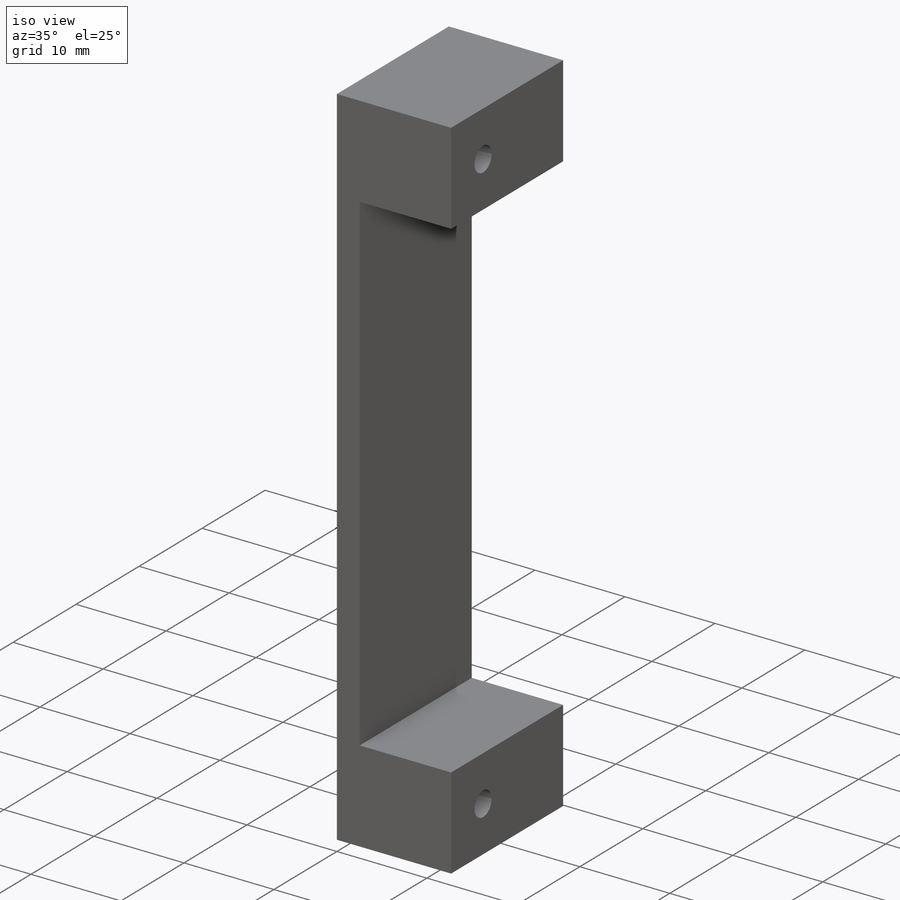
[diagram: iso view]
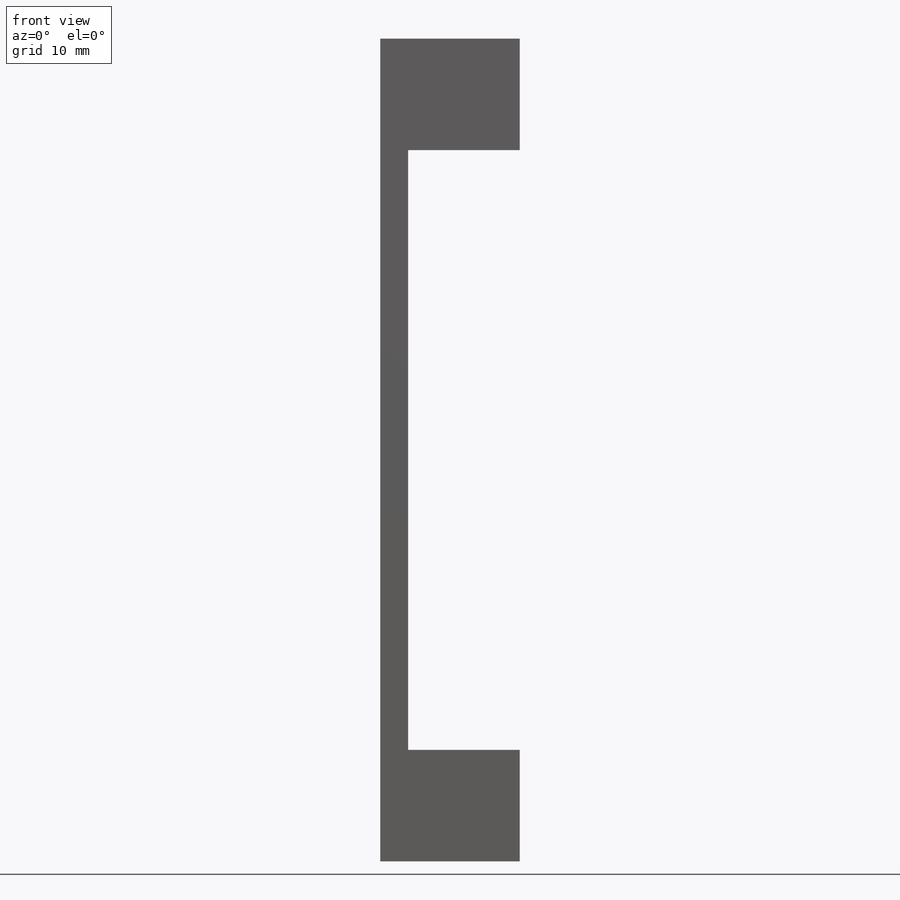
[diagram: front view]
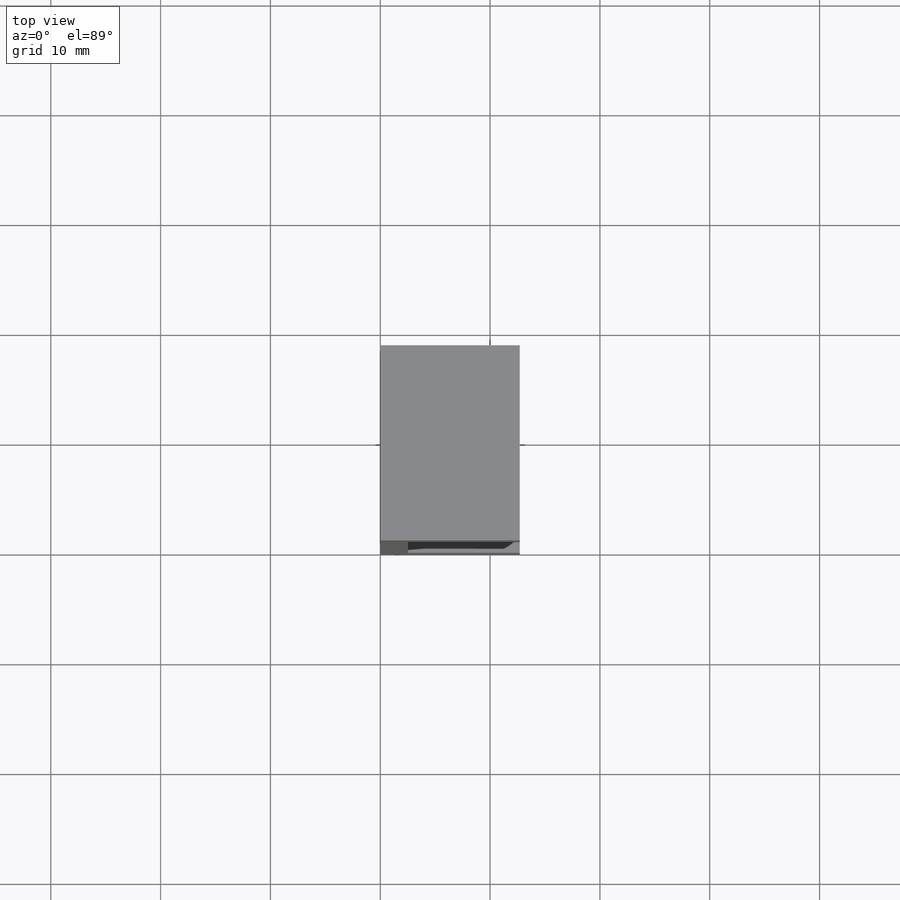
[diagram: top view]
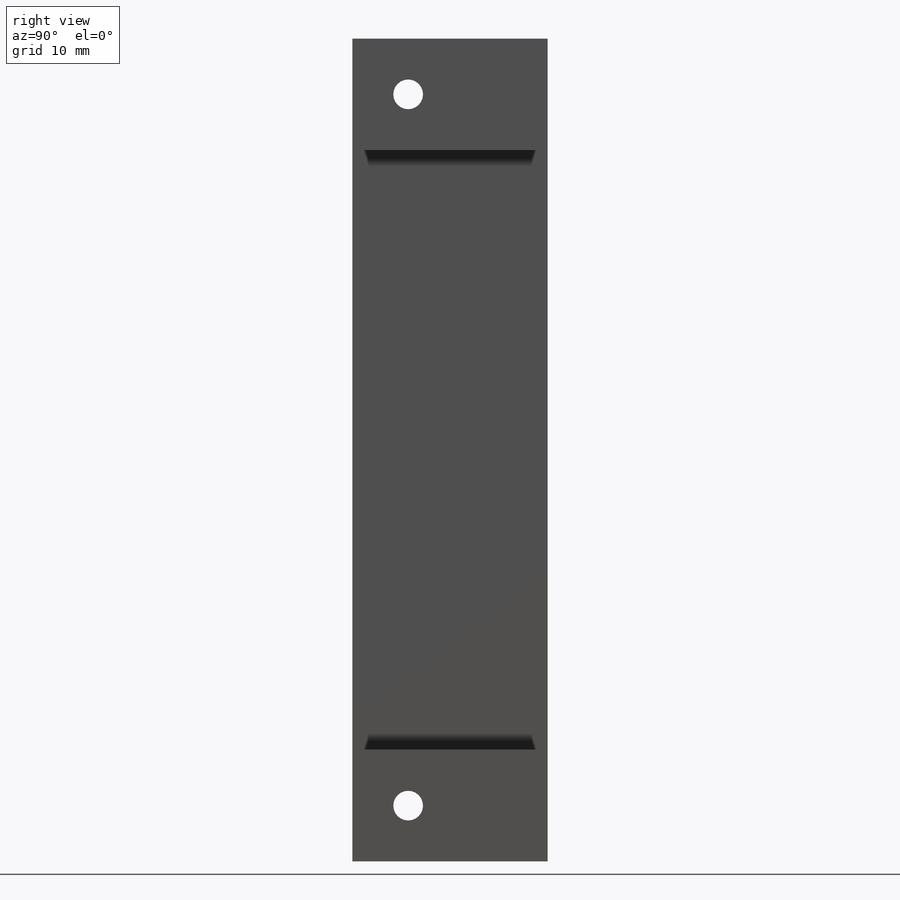
[diagram: right view]
SOLIDWORKS PART (.sldprt)
format: sldprt  version: not decoded by parser v0  size: 212,992 bytes
history: native  units: mm
features: sketch x5, cut_extrude x2, material x1, extrude x1, hole x1 (+13 scaffold rows collapsed)
feature tree (23):
  scaffold x13  (default folders/planes/origin — collapsed)
  material  "Material <not specified>"
  sketch  "Sketch1"  dims[D1=17.78mm D2=74.93mm]
  extrude  "Boss-Extrude1"  Depth=12.7mm
  sketch  "Sketch2"  dims[D1=10.16mm D2=10.16mm D3=10.16mm D4=10.16mm]
  cut_extrude  "Cut-Extrude1"  Depth=10.16mm
  hole  "Tap Drill for #6-32 Tap1"  Diameter=2.7051mm Depth=12.7mm
  sketch  "Sketch4"  dims[c1.D1=5.08mm c1.D2=5.08mm c1.D3=5.08mm c1.D4=~7.184205mm c2.D4=90.0deg c3.D4=5.08mm]
  sketch  "Sketch3"  dims[hole-wizard template sketch: 60 standard entries collapsed; hole parameters kept: c18.Thru Hole Depth=12.7mm]
  sketch  "Sketch5"  dims[D1=~2.39395mm]
  cut_extrude  "Cut-Extrude2"  Depth=11.1125mm
decode coverage: 9 of 9 modeling features carry decoded parameters
note: ~ marks probable driven/reference dimensions
note: suppression state not decoded; provenance and decode notes live in map.json
